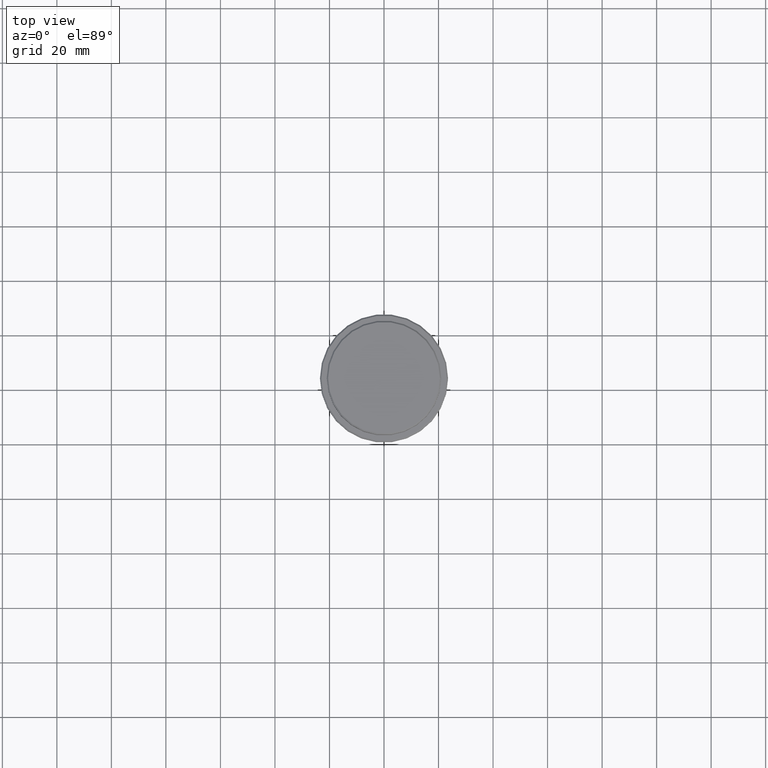
[diagram: clean part render]
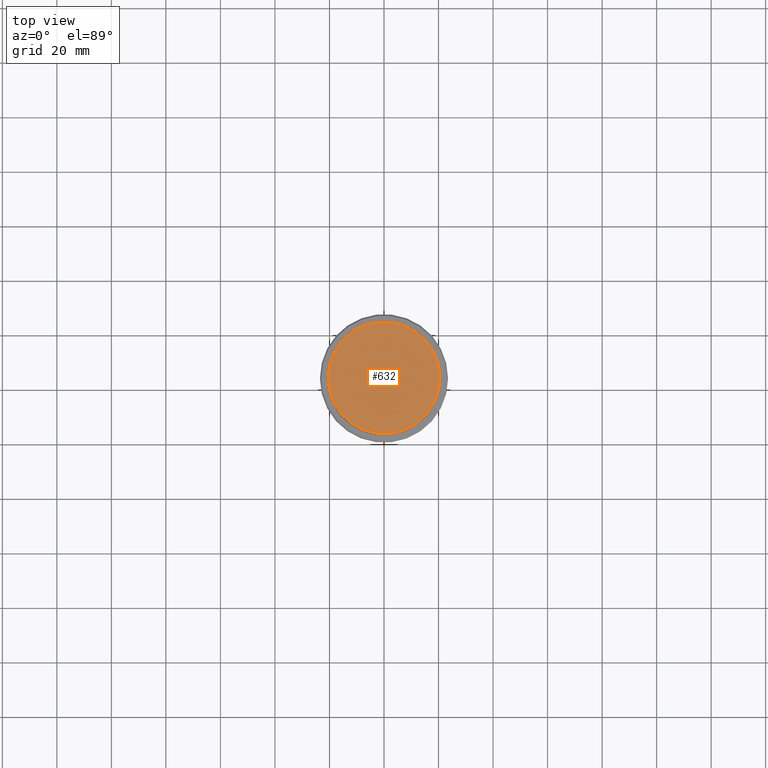
[diagram: same view with one face highlighted and labeled with its STEP entity id]
A machine part, top view. The second image highlights one B-rep face of the part: STEP entity #632.
In plain terms, the highlighted planar face has unit normal (0, -0, 1).
Its self-contained STEP definition (entity closure, byte-faithful):
#2 = PLANE ( 'NONE',  #666 ) ;
#101 = DIRECTION ( 'NONE',  ( -0.000000000000000000, -0.000000000000000000, 1.000000000000000000 ) ) ;
#110 = DIRECTION ( 'NONE',  ( 1.000000000000000000, 0.000000000000000000, 0.000000000000000000 ) ) ;
#198 = VERTEX_POINT ( 'NONE', #324 ) ;
#221 = CARTESIAN_POINT ( 'NONE',  ( 0.000000000000000000, 0.000000000000000000, 0.000000000000000000 ) ) ;
#254 = EDGE_CURVE ( 'NONE', #198, #463, #293, .T. ) ;
#276 = EDGE_LOOP ( 'NONE', ( #604, #772 ) ) ;
#282 = DIRECTION ( 'NONE',  ( 1.000000000000000000, 0.000000000000000000, 0.000000000000000000 ) ) ;
#293 = CIRCLE ( 'NONE', #1137, 20.50000000000007461 ) ;
#324 = CARTESIAN_POINT ( 'NONE',  ( 20.50000000000007461, 2.541142108230762213E-15, 0.000000000000000000 ) ) ;
#463 = VERTEX_POINT ( 'NONE', #591 ) ;
#562 = DIRECTION ( 'NONE',  ( 0.000000000000000000, -0.000000000000000000, 1.000000000000000000 ) ) ;
#591 = CARTESIAN_POINT ( 'NONE',  ( -20.50000000000007461, 0.000000000000000000, 0.000000000000000000 ) ) ;
#604 = ORIENTED_EDGE ( 'NONE', *, *, #1064, .T. ) ;
#632 = ADVANCED_FACE ( 'NONE', ( #886 ), #2, .T. ) ;
#666 = AXIS2_PLACEMENT_3D ( 'NONE', #1312, #562, #1108 ) ;
#772 = ORIENTED_EDGE ( 'NONE', *, *, #254, .T. ) ;
#837 = CARTESIAN_POINT ( 'NONE',  ( 0.000000000000000000, 0.000000000000000000, 0.000000000000000000 ) ) ;
#886 = FACE_OUTER_BOUND ( 'NONE', #276, .T. ) ;
#898 = CIRCLE ( 'NONE', #1178, 20.50000000000007461 ) ;
#1064 = EDGE_CURVE ( 'NONE', #463, #198, #898, .T. ) ;
#1108 = DIRECTION ( 'NONE',  ( 1.000000000000000000, 0.000000000000000000, 0.000000000000000000 ) ) ;
#1137 = AXIS2_PLACEMENT_3D ( 'NONE', #221, #101, #110 ) ;
#1170 = DIRECTION ( 'NONE',  ( -0.000000000000000000, -0.000000000000000000, 1.000000000000000000 ) ) ;
#1178 = AXIS2_PLACEMENT_3D ( 'NONE', #837, #1170, #282 ) ;
#1312 = CARTESIAN_POINT ( 'NONE',  ( 0.000000000000000000, 0.000000000000000000, 0.000000000000000000 ) ) ;